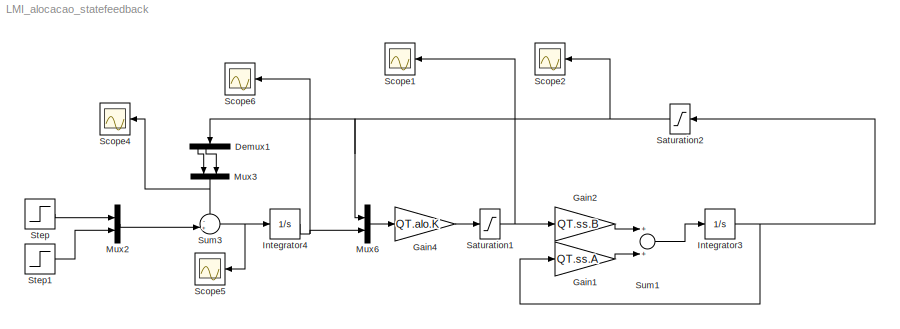
MODEL LMI_alocacao_statefeedback
KIND model
BLOCK [Demux] Demux1
  DisplayOption = bar
  Ports = [1, 4]
  SID = 161
BLOCK [Gain] Gain1
  Gain = QT.ss.A
  Multiplication = Matrix(K*u)
  OutDataTypeStr = Inherit: Inherit via internal rule
  ParamDataTypeStr = Inherit: Inherit via internal rule
  SID = 162
  SaturateOnIntegerOverflow = off
BLOCK [Gain] Gain2
  Gain = QT.ss.B
  Multiplication = Matrix(K*u)
  OutDataTypeStr = Inherit: Inherit via internal rule
  ParamDataTypeStr = Inherit: Inherit via internal rule
  SID = 163
  SaturateOnIntegerOverflow = off
BLOCK [Gain] Gain4
  Gain = QT.alo.K
  Multiplication = Matrix(K*u)
  OutDataTypeStr = Inherit: Inherit via internal rule
  ParamDataTypeStr = Inherit: Inherit via internal rule
  SID = 164
  SaturateOnIntegerOverflow = off
BLOCK [Integrator] Integrator3
  Ports = [1, 1]
  SID = 165
BLOCK [Integrator] Integrator4
  Ports = [1, 1]
  SID = 166
BLOCK [Mux] Mux2
  DisplayOption = bar
  Inputs = 2
  Ports = [2, 1]
  SID = 60
BLOCK [Mux] Mux3
  DisplayOption = bar
  Inputs = 2
  Ports = [2, 1]
  SID = 167
BLOCK [Mux] Mux6
  DisplayOption = bar
  Inputs = 2
  Ports = [2, 1]
  SID = 169
BLOCK [Saturate] Saturation1
  InputPortMap = u0
  LowerLimit = -1.5
  Ports = [1, 1]
  SID = 180
  UpperLimit = 1.5
BLOCK [Saturate] Saturation2
  InputPortMap = u0
  LowerLimit = -10
  Ports = [1, 1]
  SID = 181
  UpperLimit = 10
BLOCK [Scope] Scope1
  DataFormat = StructureWithTime
  Floating = off
  NumInputPorts = 1
  Ports = [1]
  SID = 179
  SampleInput = on
  SampleTime = 1
  YMax = 2.25
  YMin = -0.75
BLOCK [Scope] Scope2
  DataFormat = StructureWithTime
  Floating = off
  NumInputPorts = 1
  Ports = [1]
  SID = 182
  SampleInput = on
  SampleTime = 1
  SaveName = ScopeData1
  YMax = 2.25
  YMin = -0.75
BLOCK [Scope] Scope4
  DataFormat = StructureWithTime
  Floating = off
  NumInputPorts = 1
  Ports = [1]
  SID = 171
  SampleInput = on
  SampleTime = 1
  SaveName = ScopeData3
  YMax = 2.25
  YMin = -0.75
BLOCK [Scope] Scope5
  DataFormat = StructureWithTime
  Floating = off
  NumInputPorts = 1
  Ports = [1]
  SID = 172
  SampleTime = 1
  SaveName = ScopeData4
  YMax = 2.25
  YMin = -0.75
BLOCK [Scope] Scope6
  DataFormat = StructureWithTime
  Floating = off
  NumInputPorts = 1
  Ports = [1]
  SID = 173
  SampleInput = on
  SampleTime = 1
  SaveName = ScopeData5
  YMax = 2.25
  YMin = -0.75
BLOCK [Step] Step
  SID = 42
  SampleTime = 0
  Time = 1000
BLOCK [Step] Step1
  SID = 43
  SampleTime = 0
  Time = 500
BLOCK [Sum] Sum1
  InputSameDT = off
  OutDataTypeStr = Inherit: Inherit via internal rule
  Ports = [2, 1]
  SID = 176
  SaturateOnIntegerOverflow = off
BLOCK [Sum] Sum3
  IconShape = round
  InputSameDT = off
  Inputs = -+|
  OutDataTypeStr = Inherit: Inherit via internal rule
  Ports = [2, 1]
  SID = 177
  SaturateOnIntegerOverflow = off
LINE Demux1:1 -> Mux3:1
LINE Demux1:2 -> Mux3:2
LINE Gain1:1 -> Sum1:2
LINE Gain2:1 -> Sum1:1
LINE Gain4:1 -> Saturation1:1
NET Integrator3:1 -> Gain1:1, Saturation2:1
NET Integrator4:1 -> Mux6:2, Scope6:1
LINE Mux2:1 -> Sum3:2
NET Mux3:1 -> Scope4:1, Sum3:1
LINE Mux6:1 -> Gain4:1
NET Saturation1:1 -> Gain2:1, Scope1:1
NET Saturation2:1 -> Demux1:1, Mux6:1, Scope2:1
LINE Step1:1 -> Mux2:2
LINE Step:1 -> Mux2:1
LINE Sum1:1 -> Integrator3:1
NET Sum3:1 -> Integrator4:1, Scope5:1
note: NET lines group one-source signal fan-out (src -> all destinations, sorted); 1:1 wires keep LINE
